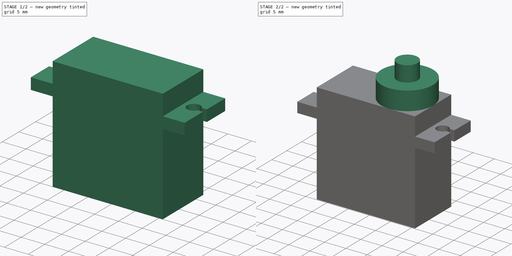
[diagram: build sequence overview — one tinted view per stage of 2, left to right]
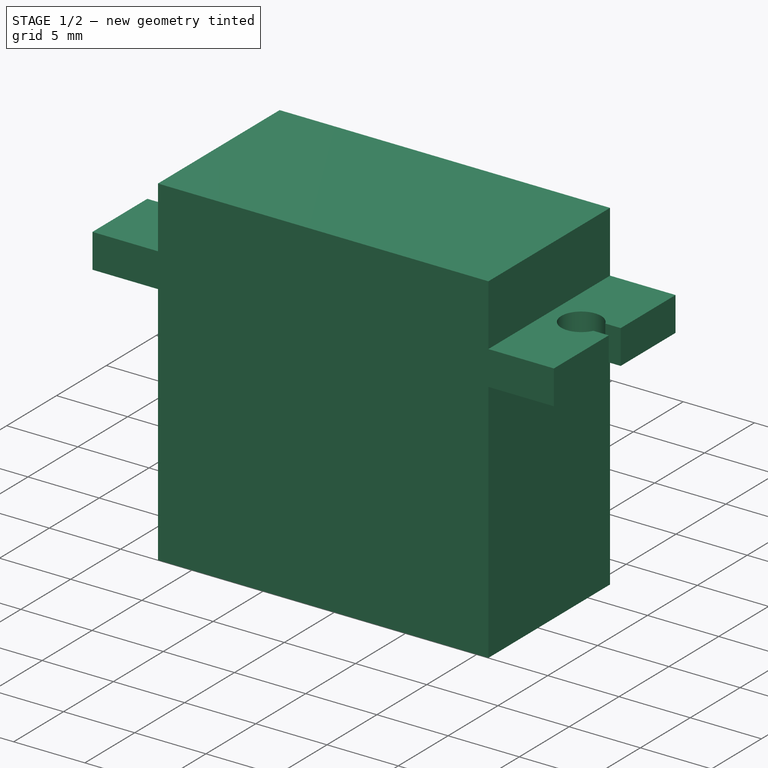
[diagram: stage 1 of 2 — iso view after this stage's code; geometry added in this stage tinted green]
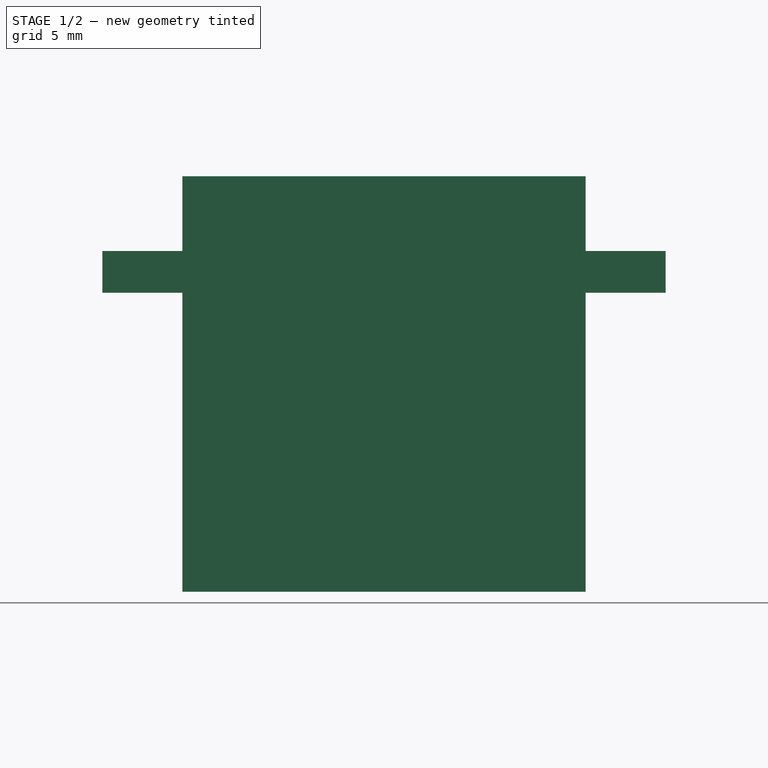
[diagram: stage 1 of 2 — front view after this stage's code; geometry added in this stage tinted green]
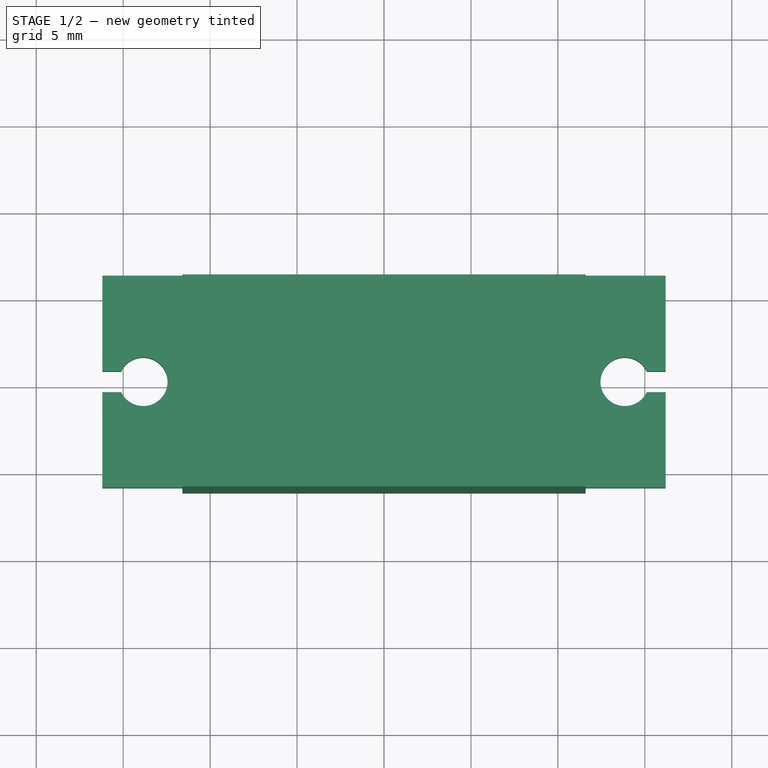
[diagram: stage 1 of 2 — top view after this stage's code; geometry added in this stage tinted green]
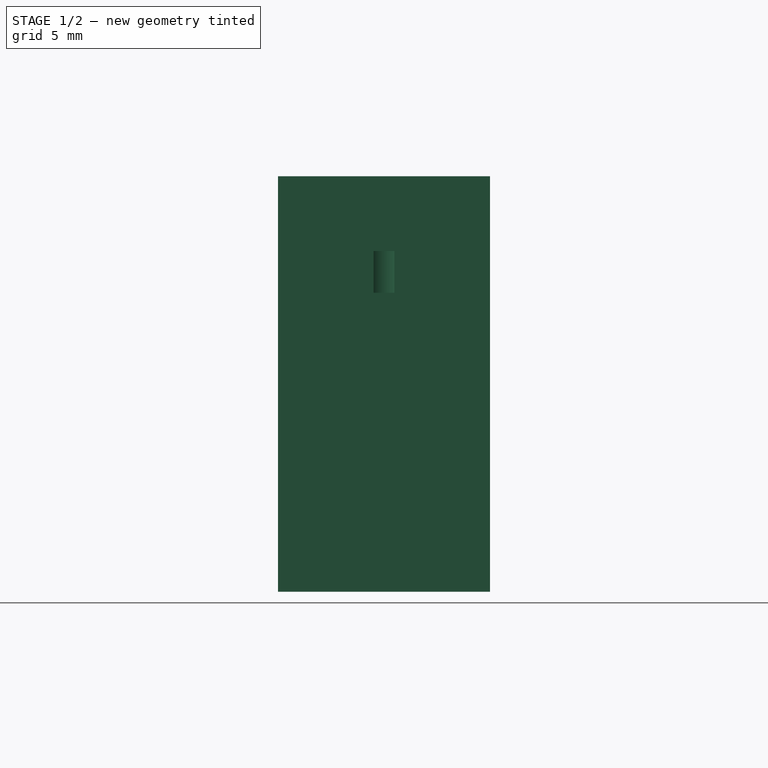
[diagram: stage 1 of 2 — right view after this stage's code; geometry added in this stage tinted green]
FCSTD DOCUMENT  (FreeCAD 1.0R39109 (Git))
Label: servo
License: All rights reserved
LicenseURL: https://en.wikipedia.org/wiki/All_rights_reserved
objects: Sketcher::SketchObject×4, PartDesign::Pad×3, App::VarSet×1, PartDesign::Pocket×1, PartDesign::Body×1
note: 21 computed .brp shape members not serialized (recipe doc carries the construction recipe); baked Part::Feature solids carry a one-line shape summary decoded from their .brp

FEATURE [Sketcher::SketchObject] Sketch
  ArcFitTolerance = 1e-06
  AttachmentSupport = -> [XZ_Plane]
  FullyConstrained = true
  MakeInternals = false
  MapMode = 5
  Placement = pos=(0,0,0) rot=(1,0,0;1.5708rad)
  sketch-geometry (21):
    g0: LineSegment [constr] StartX=-11.6 StartY=0 StartZ=0 EndX=11.6 EndY=0 EndZ=0
    g1: LineSegment [constr] StartX=11.6 StartY=0 StartZ=0 EndX=11.6 EndY=23.9 EndZ=0
    g2: LineSegment [constr] StartX=11.6 StartY=23.9 StartZ=0 EndX=-11.6 EndY=23.9 EndZ=0
    g3: LineSegment [constr] StartX=-11.6 StartY=23.9 StartZ=0 EndX=-11.6 EndY=0 EndZ=0
    g4: LineSegment [constr] StartX=-16.2 StartY=17.2 StartZ=0 EndX=16.2 EndY=17.2 EndZ=0
    g5: LineSegment [constr] StartX=16.2 StartY=17.2 StartZ=0 EndX=16.2 EndY=19.6 EndZ=0
    g6: LineSegment [constr] StartX=16.2 StartY=19.6 StartZ=0 EndX=-16.2 EndY=19.6 EndZ=0
    g7: LineSegment [constr] StartX=-16.2 StartY=19.6 StartZ=0 EndX=-16.2 EndY=17.2 EndZ=0
    g8: GeomPoint [constr] X=0 Y=18.4 Z=0
    g9: LineSegment StartX=-11.6 StartY=23.9 StartZ=0 EndX=-11.6 EndY=19.6 EndZ=0
    g10: LineSegment StartX=-11.6 StartY=19.6 StartZ=0 EndX=-16.2 EndY=19.6 EndZ=0
    g11: LineSegment StartX=-16.2 StartY=19.6 StartZ=0 EndX=-16.2 EndY=17.2 EndZ=0
    g12: LineSegment StartX=-16.2 StartY=17.2 StartZ=0 EndX=-11.6 EndY=17.2 EndZ=0
    g13: LineSegment StartX=-11.6 StartY=17.2 StartZ=0 EndX=-11.6 EndY=0 EndZ=0
    g14: LineSegment StartX=-11.6 StartY=0 StartZ=0 EndX=11.6 EndY=0 EndZ=0
    g15: LineSegment StartX=11.6 StartY=0 StartZ=0 EndX=11.6 EndY=17.2 EndZ=0
    g16: LineSegment StartX=11.6 StartY=17.2 StartZ=0 EndX=16.2 EndY=17.2 EndZ=0
    g17: LineSegment StartX=16.2 StartY=17.2 StartZ=0 EndX=16.2 EndY=19.6 EndZ=0
    g18: LineSegment StartX=16.2 StartY=19.6 StartZ=0 EndX=11.6 EndY=19.6 EndZ=0
    g19: LineSegment StartX=11.6 StartY=19.6 StartZ=0 EndX=11.6 EndY=23.9 EndZ=0
    g20: LineSegment StartX=11.6 StartY=23.9 StartZ=0 EndX=-11.6 EndY=23.9 EndZ=0
  constraints (52):
    c: Coincident(g0,g1)
    c: Coincident(g1,g2)
    c: Coincident(g2,g3)
    c: Coincident(g3,g0)
    c: Horizontal(g2)
    c: Vertical(g1)
    c: Vertical(g3)
    c: PointOnObject(g0,g-1)
    c: DistanceX(g2,g2) = 23.2
    c: Symmetric(g0,g0,g-2)
    c: Coincident(g4,g5)
    c: Coincident(g5,g6)
    c: Coincident(g6,g7)
    c: Coincident(g7,g4)
    c: Horizontal(g4)
    c: Horizontal(g6)
    c: Vertical(g5)
    c: Vertical(g7)
    c: Symmetric(g6,g4,g8)
    c: Distance(g5,g7) = 32.4
    c: Distance(g4,g6) = 2.4
    c: PointOnObject(g8,g-2)
    c: Distance(g0,g4) = 17.2
    c: Coincident(g2,g9)
    c: PointOnObject(g9,g3)
    c: Coincident(g9,g10)
    c: Coincident(g10,g6)
    c: Horizontal(g10)
    c: Coincident(g10,g11)
    c: Coincident(g11,g4)
    c: Coincident(g11,g12)
    c: PointOnObject(g12,g4)
    c: Coincident(g12,g13)
    c: Coincident(g13,g0)
    c: Vertical(g13)
    c: Coincident(g13,g14)
    c: Coincident(g14,g0)
    c: Coincident(g14,g15)
    c: PointOnObject(g15,g4)
    c: Vertical(g15)
    c: Coincident(g15,g16)
    c: Coincident(g16,g4)
    c: Coincident(g16,g17)
    c: Coincident(g17,g5)
    c: Coincident(g17,g18)
    c: PointOnObject(g18,g6)
    c: Coincident(g18,g19)
    c: Coincident(g19,g1)
    c: Vertical(g19)
    c: Coincident(g19,g20)
    c: Coincident(g20,g9)
    c: Distance(g20,g6) = 4.3
FEATURE [PartDesign::Pad] Pad
  Direction = (0,-1,2e-16)
  Length = 12.2
  Length2 = 10
  Midplane = true
  Placement = pos=(0,0,0) rot=(1,0,0;1.5708rad)
  Profile = -> Sketch
  ReferenceAxis = -> Sketch [N_Axis]
  Refine = true
  Suppressed = false
  Type = 0
FEATURE [Sketcher::SketchObject] Sketch001
  ArcFitTolerance = 1e-06
  AttachmentSupport = -> [Pad]
  ExternalGeometry = -> [Pad]
  FullyConstrained = true
  MakeInternals = false
  MapMode = 5
  Placement = pos=(0,4.4e-15,19.6) rot=(0,0,1;3.14159rad)
  sketch-geometry (12):
    g0: GeomPoint X=-16.2 Y=0.6 Z=0
    g1: GeomPoint X=-16.2 Y=-0.6 Z=0
    g2: GeomPoint X=16.2 Y=0.6 Z=0
    g3: GeomPoint X=16.2 Y=-0.6 Z=0
    g4: LineSegment StartX=-16.2 StartY=0.6 StartZ=0 EndX=-15.1149 EndY=0.6 EndZ=0
    g5: LineSegment StartX=-16.2 StartY=-0.6 StartZ=0 EndX=-15.1149 EndY=-0.6 EndZ=0
    g6: LineSegment StartX=16.2 StartY=0.6 StartZ=0 EndX=15.1149 EndY=0.6 EndZ=0
    g7: LineSegment StartX=16.2 StartY=-0.6 StartZ=0 EndX=15.1149 EndY=-0.6 EndZ=0
    g8: ArcOfCircle CenterX=-13.85 CenterY=0 CenterZ=0 NormalX=0 NormalY=0 NormalZ=1 AngleXU=0 Radius=1.4 StartAngle=3.5845 EndAngle=8.98187
    g9: ArcOfCircle CenterX=13.85 CenterY=0 CenterZ=0 NormalX=0 NormalY=0 NormalZ=1 AngleXU=0 Radius=1.4 StartAngle=0.442911 EndAngle=5.84027
    g10: LineSegment StartX=-16.2 StartY=0.6 StartZ=0 EndX=-16.2 EndY=-0.6 EndZ=0
    g11: LineSegment StartX=16.2 StartY=0.6 StartZ=0 EndX=16.2 EndY=-0.6 EndZ=0
  constraints (27):
    c: PointOnObject(g0,g-3)
    c: PointOnObject(g2,g-4)
    c: Symmetric(g0,g1,g-1)
    c: Symmetric(g2,g3,g-1)
    c: Distance(g2,g3) = 1.2
    c: Distance(g0,g1) = 1.2
    c: Coincident(g4,g0)
    c: Horizontal(g4)
    c: Coincident(g5,g1)
    c: Horizontal(g5)
    c: Coincident(g6,g2)
    c: Horizontal(g6)
    c: Coincident(g7,g3)
    c: Horizontal(g7)
    c: PointOnObject(g8,g-1)
    c: Coincident(g8,g4)
    c: Coincident(g8,g5)
    c: Coincident(g9,g6)
    c: Coincident(g9,g7)
    c: Radius(g9) = 1.4
    c: Radius(g8) = 1.4
    c: Symmetric(g8,g9,g-2)
    c: Distance(g9,g8) = 27.7
    c: Coincident(g10,g0)
    c: Coincident(g10,g1)
    c: Coincident(g11,g2)
    c: Coincident(g11,g3)
FEATURE [App::VarSet] VarSet
  screw_hole_diameter = 1.4
FEATURE [PartDesign::Pocket] Pocket
  BaseFeature = -> Pad
  Direction = (0,0,-1)
  Length = 2.4
  Length2 = 5
  Placement = pos=(0,0,0) rot=(1,0,0;1.5708rad)
  Profile = -> Sketch001
  ReferenceAxis = -> Sketch001 [N_Axis]
  Refine = true
  Suppressed = false
  Type = 0
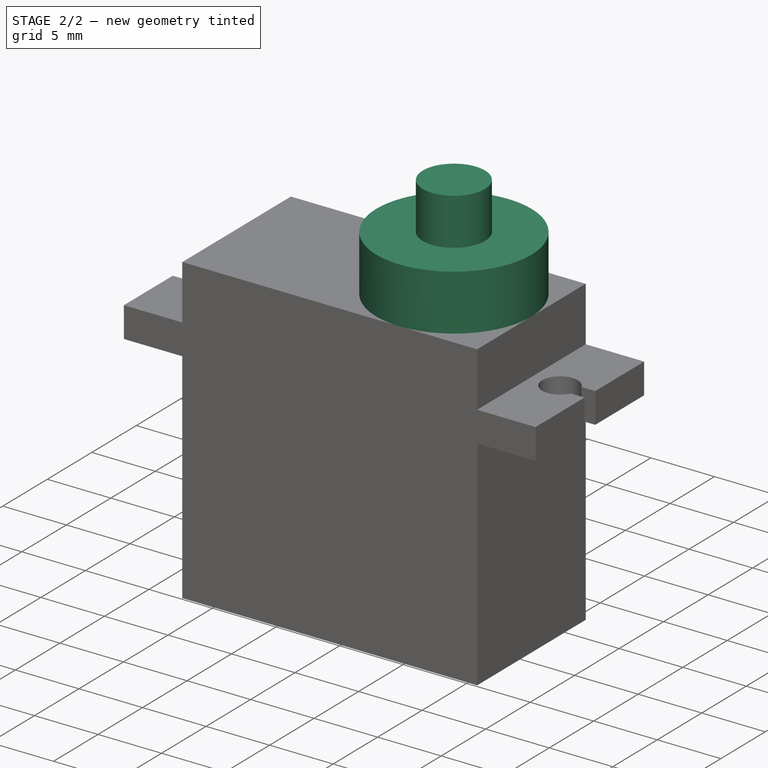
[diagram: stage 2 of 2 — iso view after this stage's code; geometry added in this stage tinted green]
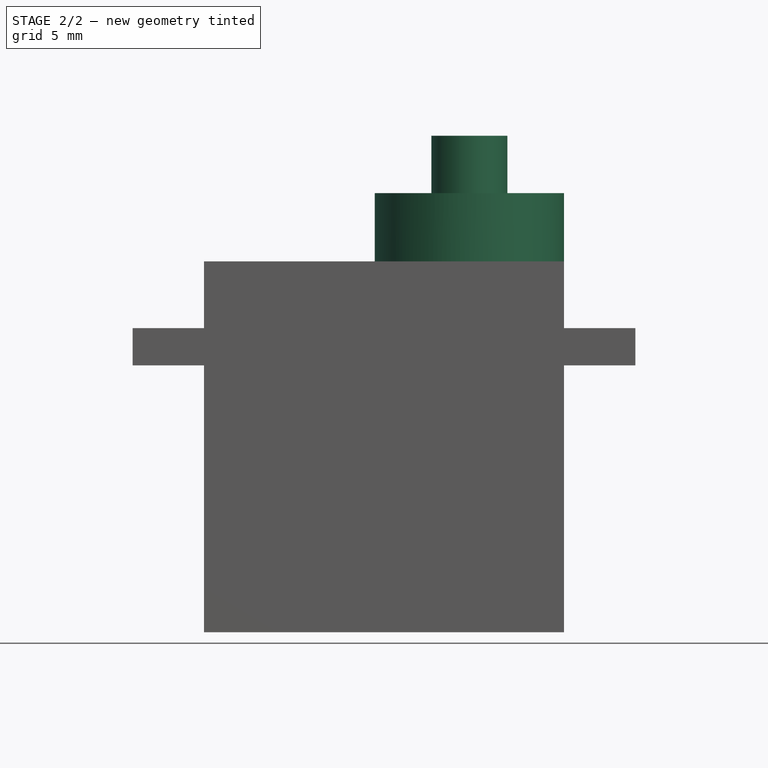
[diagram: stage 2 of 2 — front view after this stage's code; geometry added in this stage tinted green]
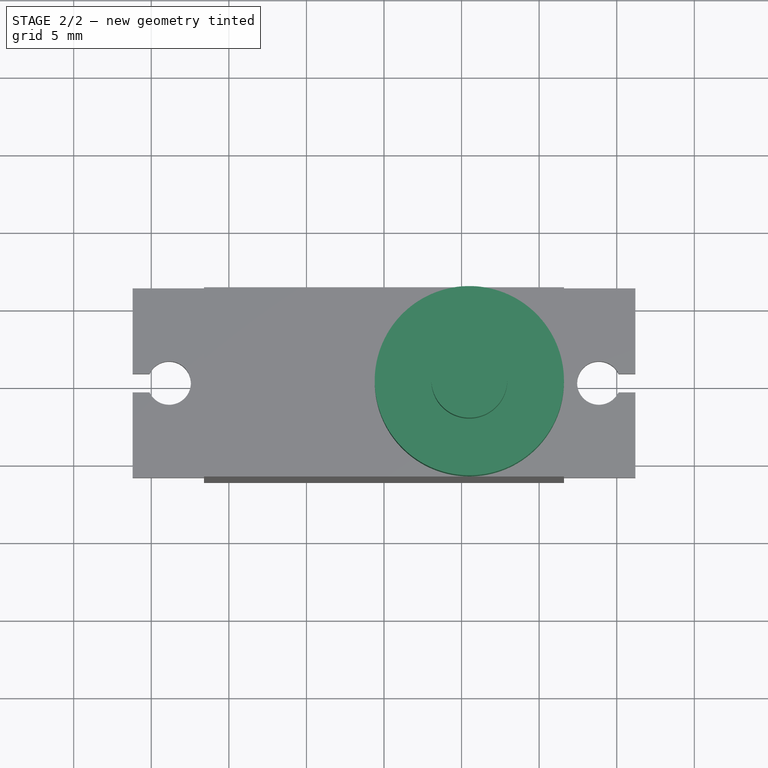
[diagram: stage 2 of 2 — top view after this stage's code; geometry added in this stage tinted green]
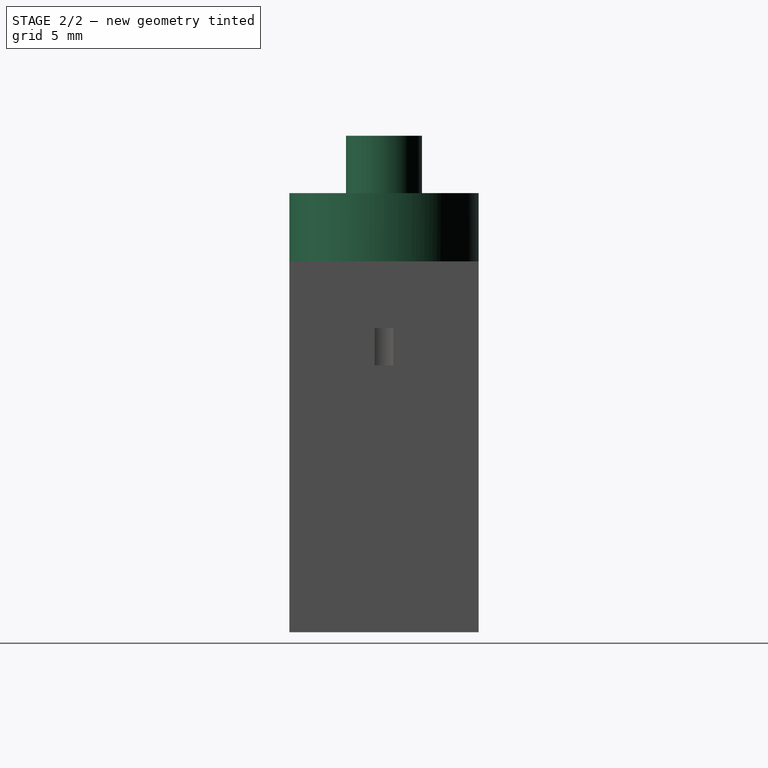
[diagram: stage 2 of 2 — right view after this stage's code; geometry added in this stage tinted green]
FEATURE [Sketcher::SketchObject] Sketch002
  ArcFitTolerance = 1e-06
  AttachmentSupport = -> [Pocket]
  ExternalGeometry = -> [Pocket]
  FullyConstrained = true
  MakeInternals = false
  MapMode = 5
  Placement = pos=(0,5.3e-15,23.9) rot=(0,0,1;3.14159rad)
  sketch-geometry (1):
    g0: Circle CenterX=-5.5 CenterY=0 CenterZ=0 NormalX=0 NormalY=0 NormalZ=1 AngleXU=0 Radius=6.1
  constraints (3):
    c: PointOnObject(g0,g-1)
    c: Tangent(g0,g-4)
    c: Diameter(g0) = 12.2
FEATURE [PartDesign::Pad] Pad001
  BaseFeature = -> Pocket
  Direction = (0,0,1)
  Length = 4.4
  Length2 = 10
  Placement = pos=(0,0,0) rot=(1,0,0;1.5708rad)
  Profile = -> Sketch002
  ReferenceAxis = -> Sketch002 [N_Axis]
  Refine = true
  Suppressed = false
  Type = 0
FEATURE [Sketcher::SketchObject] Sketch003
  ArcFitTolerance = 1e-06
  AttachmentSupport = -> [Pad001]
  ExternalGeometry = -> [Pad001]
  FullyConstrained = true
  MakeInternals = false
  MapMode = 5
  Placement = pos=(0,0,28.3) rot=(0,0,1;3.14159rad)
  sketch-geometry (1):
    g0: Circle CenterX=-5.5 CenterY=0 CenterZ=0 NormalX=0 NormalY=0 NormalZ=1 AngleXU=0 Radius=2.45
  constraints (2):
    c: Coincident(g0,g-3)
    c: Diameter(g0) = 4.9
FEATURE [PartDesign::Pad] Pad002
  BaseFeature = -> Pad001
  Direction = (0,0,1)
  Length = 3.7
  Length2 = 10
  Placement = pos=(0,0,0) rot=(1,0,0;1.5708rad)
  Profile = -> Sketch003
  ReferenceAxis = -> Sketch003 [N_Axis]
  Refine = true
  Suppressed = false
  Type = 0
FEATURE [PartDesign::Body] Body
  AllowCompound = false
  Group = -> [Sketch,Pad,Sketch001,Pocket,Sketch002,Pad001,Sketch003,Pad002]
  Origin = -> Origin
  Tip = -> Pad002
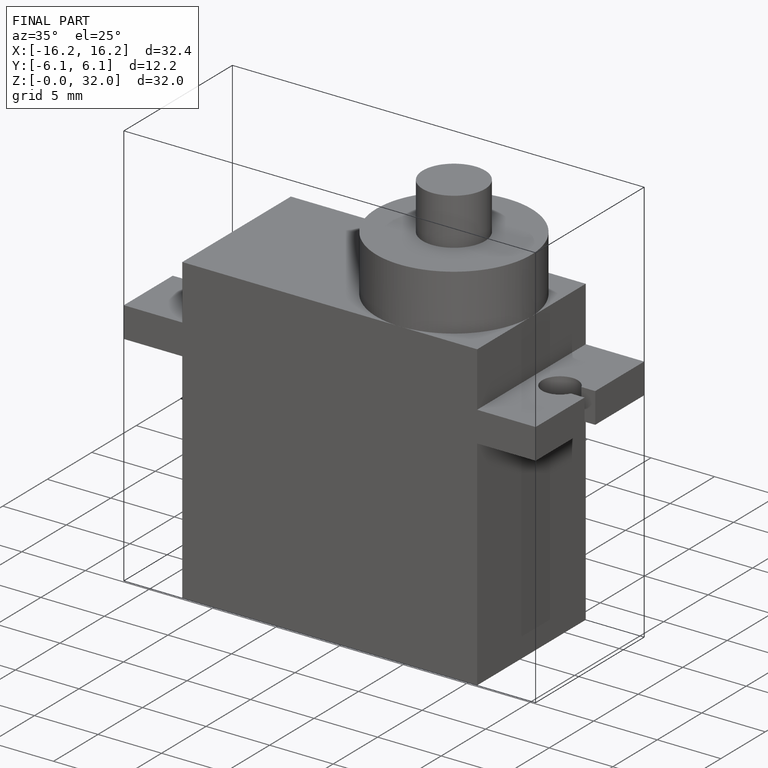
[diagram: finished part — iso view with bounding-box wireframe]
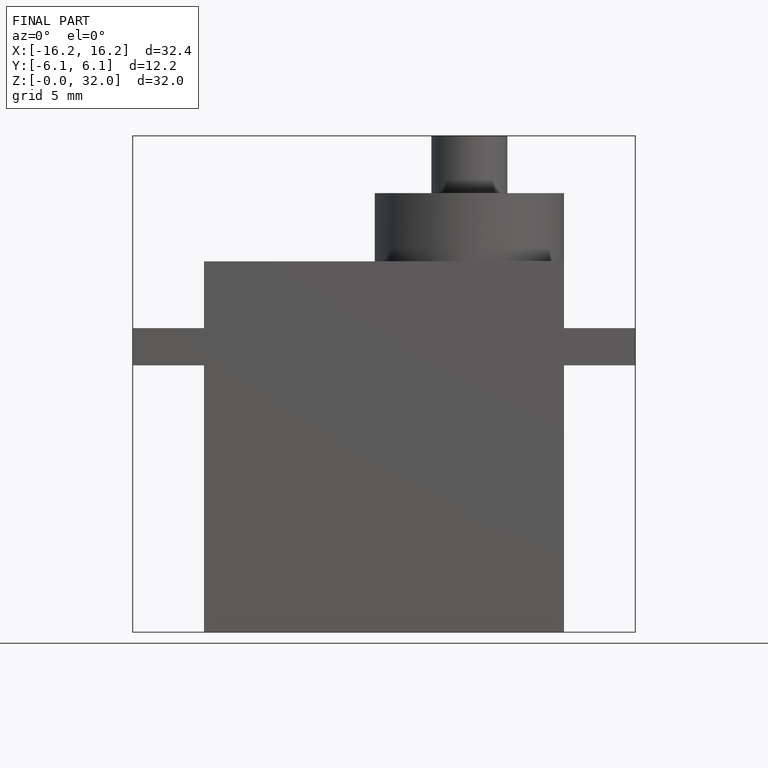
[diagram: finished part — front view with bounding-box wireframe]
